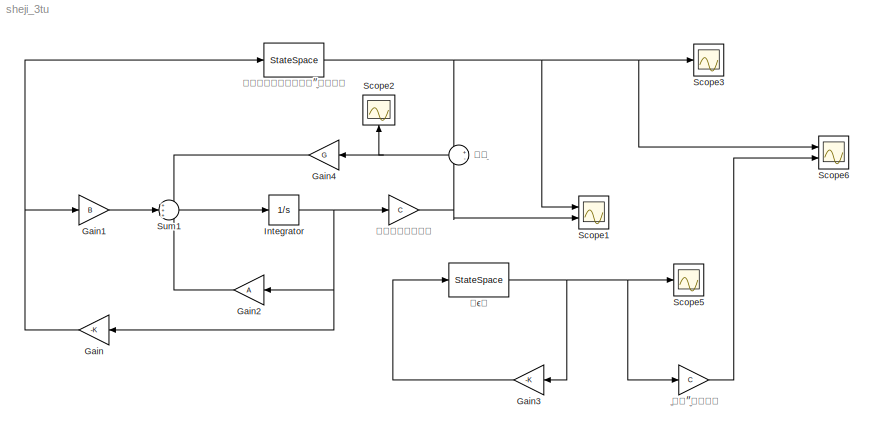
MODEL sheji_3tu
KIND model
BLOCK [Gain] Gain
  Gain = -K
  Multiplication = Matrix(K*u)
  NameLocation = top
  SID = 6
BLOCK [Gain] Gain1
  Gain = B
  Multiplication = Matrix(K*u)
  SID = 7
BLOCK [Gain] Gain2
  Gain = A
  Multiplication = Matrix(K*u)
  NameLocation = top
  SID = 8
BLOCK [Gain] Gain3
  Gain = -K
  Multiplication = Matrix(K*u)
  NameLocation = top
  SID = 33
BLOCK [Gain] Gain4
  Gain = G
  Multiplication = Matrix(K*u)
  NameLocation = top
  SID = 10
BLOCK [Integrator] Integrator
  InitialCondition = Initobserv
  Ports = [1, 1]
  SID = 12
BLOCK [Scope] Scope1
  Floating = off
  NumInputPorts = 2
  Ports = [2]
  SID = 15
  ScopeSpecificationString = Simulink.scopes.TimeScopeBlockCfg('CurrentConfiguration', extmgr.ConfigurationSet(extmgr.Configuration('Core','General UI',true),extmgr.Configuration('Core','Source UI',true),extmgr.Configuration('Sources','WiredSimulink',true),extmgr.Configuration('Visuals','Time Domain',true,'SerializedDisplays',{struct('MinYLimReal','-0.38018','MaxYLimReal','0.03989','YLabelReal','','MinYLimMag','0.00000','MaxY...<+1386ch>
BLOCK [Scope] Scope2
  Floating = off
  NameLocation = right
  NumInputPorts = 1
  Ports = [1]
  SID = 29
  ScopeSpecificationString = Simulink.scopes.TimeScopeBlockCfg('CurrentConfiguration', extmgr.ConfigurationSet(extmgr.Configuration('Core','General UI',true),extmgr.Configuration('Core','Source UI',true),extmgr.Configuration('Sources','WiredSimulink',true,'DataLoggingVariableName','ScopeData2'),extmgr.Configuration('Visuals','Time Domain',true,'SerializedDisplays',{struct('MinYLimReal','-0.0125','MaxYLimReal','0.1125','YLabel...<+1390ch>
BLOCK [Scope] Scope3
  Floating = off
  NumInputPorts = 1
  Ports = [1]
  SID = 30
  ScopeSpecificationString = Simulink.scopes.TimeScopeBlockCfg('CurrentConfiguration', extmgr.ConfigurationSet(extmgr.Configuration('Core','General UI',true),extmgr.Configuration('Core','Source UI',true),extmgr.Configuration('Sources','WiredSimulink',true,'DataLoggingVariableName','ScopeData3'),extmgr.Configuration('Visuals','Time Domain',true,'SerializedDisplays',{struct('MinYLimReal','-0.13371','MaxYLimReal','1.21593','YLab...<+1412ch>
BLOCK [Scope] Scope5
  Floating = off
  NumInputPorts = 1
  Ports = [1]
  SID = 35
  ScopeSpecificationString = Simulink.scopes.TimeScopeBlockCfg('CurrentConfiguration', extmgr.ConfigurationSet(extmgr.Configuration('Core','General UI',true),extmgr.Configuration('Core','Source UI',true),extmgr.Configuration('Sources','WiredSimulink',true,'DataLoggingVariableName','ScopeData1'),extmgr.Configuration('Visuals','Time Domain',true,'SerializedDisplays',{struct('MinYLimReal','-0.54043','MaxYLimReal','0.28227','YLab...<+1433ch>
BLOCK [Scope] Scope6
  Floating = off
  NumInputPorts = 2
  Ports = [2]
  SID = 36
  ScopeSpecificationString = Simulink.scopes.TimeScopeBlockCfg('CurrentConfiguration', extmgr.ConfigurationSet(extmgr.Configuration('Core','General UI',true,'FigureColor',[0.941176470588235 0.941176470588235 0.941176470588235]),extmgr.Configuration('Core','Source UI',true),extmgr.Configuration('Sources','WiredSimulink',true,'DataLoggingVariableName','ScopeData5'),extmgr.Configuration('Visuals','Time Domain',true,'SerializedDi...<+1894ch>
BLOCK [Sum] Sum1
  Inputs = +++
  Ports = [3, 1]
  SID = 5
BLOCK [Sum] ²îÖµ
  Inputs = +-
  NameLocation = top
  Ports = [2, 1]
  SID = 3
BLOCK [Gain] 观测器输出
  Gain = C
  Multiplication = Matrix(K*u)
  SID = 9
BLOCK [StateSpace] 基于观测器的状态反馈
  A = A
  B = B
  C = C
  D = [0]
  InitialCondition = Init
  Ports = [1, 1]
  SID = 1
BLOCK [StateSpace] Ô­ÏµÍ³
  A = A
  B = B
  C = eye(4)
  D = [0;0;0;0]
  InitialCondition = Init
  Ports = [1, 1]
  SID = 32
BLOCK [Gain] 直接状态反馈
  Gain = C
  Multiplication = Matrix(K*u)
  SID = 34
LINE Gain1:1 -> Sum1:2
LINE Gain2:1 -> Sum1:3
LINE Gain3:1 -> Ô­ÏµÍ³:1
LINE Gain4:1 -> Sum1:1
NET Gain:1 -> Gain1:1, 基于观测器的状态反馈:1
NET Integrator:1 -> Gain2:1, Gain:1, 观测器输出:1
LINE Sum1:1 -> Integrator:1
NET ²îÖµ:1 -> Gain4:1, Scope2:1
NET 观测器输出:1 -> Scope1:2, ²îÖµ:2
NET 基于观测器的状态反馈:1 -> Scope1:1, Scope3:1, Scope6:1, ²îÖµ:1
NET Ô­ÏµÍ³:1 -> Gain3:1, Scope5:1, 直接状态反馈:1
LINE 直接状态反馈:1 -> Scope6:2
note: NET lines group one-source signal fan-out (src -> all destinations, sorted); 1:1 wires keep LINE
